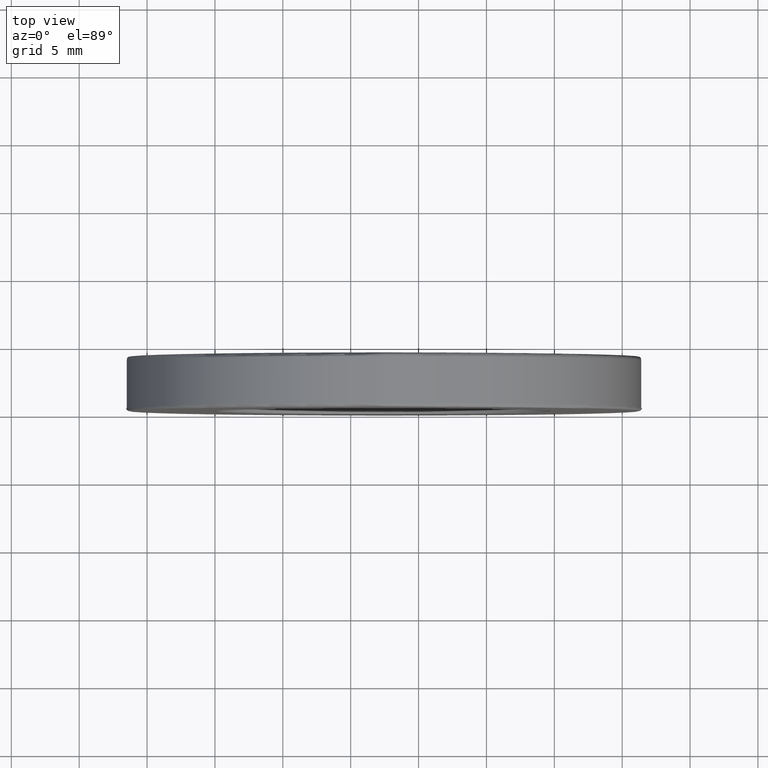
[diagram: clean part render]
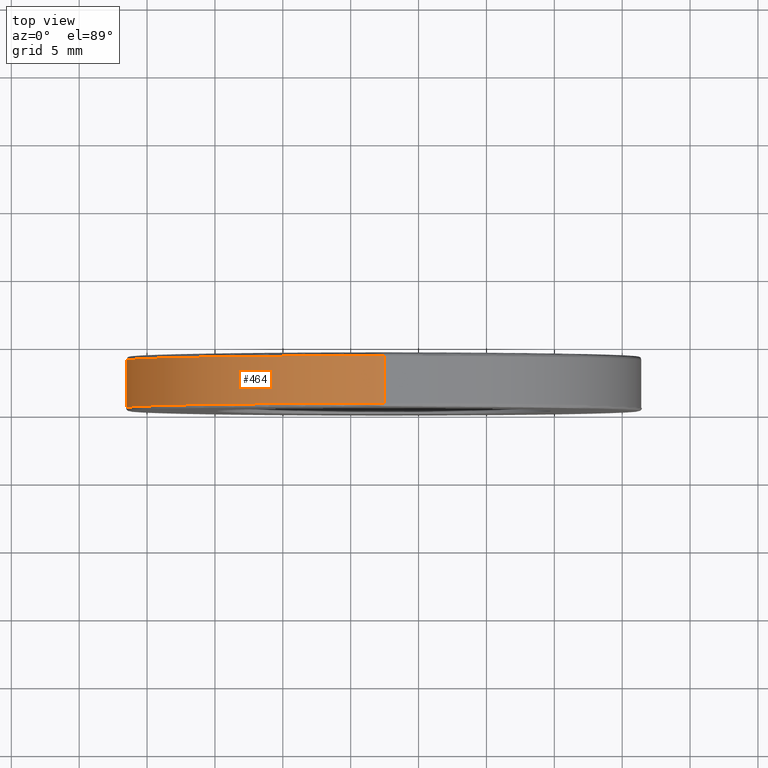
[diagram: same view with one face highlighted and labeled with its STEP entity id]
A machine part, top view. The second image highlights one B-rep face of the part: STEP entity #464.
In plain terms, the highlighted cylindrical surface (partial cylindrical patch) has radius 19 mm, axis along (-0, -1, -0).
Its self-contained STEP definition (entity closure, byte-faithful):
#11 = DIRECTION ( 'NONE',  ( -0.000000000000000000, -1.000000000000000000, -0.000000000000000000 ) ) ;
#23 = EDGE_CURVE ( 'NONE', #163, #558, #190, .T. ) ;
#29 = CARTESIAN_POINT ( 'NONE',  ( -7.546808913101048510, -4.643595127302727832, 38.00000000000000000 ) ) ;
#32 = CARTESIAN_POINT ( 'NONE',  ( -7.546808913101048510, -1.143595127302727832, 56.99999999999999289 ) ) ;
#51 = CARTESIAN_POINT ( 'NONE',  ( -7.546808913101045846, -4.643595127302727832, 56.99999999999999289 ) ) ;
#76 = DIRECTION ( 'NONE',  ( 0.000000000000000000, 0.000000000000000000, 1.000000000000000000 ) ) ;
#90 = CARTESIAN_POINT ( 'NONE',  ( -7.546808913101048510, -4.643595127302727832, 19.00000000000000000 ) ) ;
#92 = EDGE_CURVE ( 'NONE', #225, #439, #242, .T. ) ;
#120 = ORIENTED_EDGE ( 'NONE', *, *, #178, .T. ) ;
#124 = VECTOR ( 'NONE', #11, 1000.000000000000000 ) ;
#159 = AXIS2_PLACEMENT_3D ( 'NONE', #603, #563, #176 ) ;
#163 = VERTEX_POINT ( 'NONE', #32 ) ;
#173 = CARTESIAN_POINT ( 'NONE',  ( -7.546808913101044958, -1.143595127302727832, 19.00000000000000000 ) ) ;
#176 = DIRECTION ( 'NONE',  ( 0.000000000000000000, 0.000000000000000000, -1.000000000000000000 ) ) ;
#178 = EDGE_CURVE ( 'NONE', #439, #558, #589, .T. ) ;
#179 = DIRECTION ( 'NONE',  ( -0.000000000000000000, -1.000000000000000000, -0.000000000000000000 ) ) ;
#190 = LINE ( 'NONE', #566, #413 ) ;
#225 = VERTEX_POINT ( 'NONE', #173 ) ;
#242 = LINE ( 'NONE', #431, #124 ) ;
#323 = ORIENTED_EDGE ( 'NONE', *, *, #23, .F. ) ;
#369 = CYLINDRICAL_SURFACE ( 'NONE', #159, 19.00000000000000000 ) ;
#372 = DIRECTION ( 'NONE',  ( 0.000000000000000000, 0.000000000000000000, 1.000000000000000000 ) ) ;
#373 = DIRECTION ( 'NONE',  ( -0.000000000000000000, -1.000000000000000000, -0.000000000000000000 ) ) ;
#380 = EDGE_CURVE ( 'NONE', #163, #225, #499, .T. ) ;
#413 = VECTOR ( 'NONE', #373, 1000.000000000000000 ) ;
#416 = CARTESIAN_POINT ( 'NONE',  ( -7.546808913101048510, -1.143595127302727832, 38.00000000000000000 ) ) ;
#431 = CARTESIAN_POINT ( 'NONE',  ( -7.546808913101048510, -0.8935951273027278319, 19.00000000000000000 ) ) ;
#439 = VERTEX_POINT ( 'NONE', #90 ) ;
#442 = DIRECTION ( 'NONE',  ( 0.000000000000000000, 1.000000000000000000, 0.000000000000000000 ) ) ;
#464 = ADVANCED_FACE ( 'NONE', ( #470 ), #369, .T. ) ;
#466 = ORIENTED_EDGE ( 'NONE', *, *, #380, .T. ) ;
#470 = FACE_OUTER_BOUND ( 'NONE', #497, .T. ) ;
#497 = EDGE_LOOP ( 'NONE', ( #323, #466, #534, #120 ) ) ;
#499 = CIRCLE ( 'NONE', #580, 18.99999999999999645 ) ;
#534 = ORIENTED_EDGE ( 'NONE', *, *, #92, .T. ) ;
#558 = VERTEX_POINT ( 'NONE', #51 ) ;
#563 = DIRECTION ( 'NONE',  ( -0.000000000000000000, -1.000000000000000000, -0.000000000000000000 ) ) ;
#566 = CARTESIAN_POINT ( 'NONE',  ( -7.546808913101045846, -0.8935951273027278319, 56.99999999999999289 ) ) ;
#579 = AXIS2_PLACEMENT_3D ( 'NONE', #29, #442, #76 ) ;
#580 = AXIS2_PLACEMENT_3D ( 'NONE', #416, #179, #372 ) ;
#589 = CIRCLE ( 'NONE', #579, 18.99999999999999645 ) ;
#603 = CARTESIAN_POINT ( 'NONE',  ( -7.546808913101048510, -0.8935951273027278319, 38.00000000000000000 ) ) ;